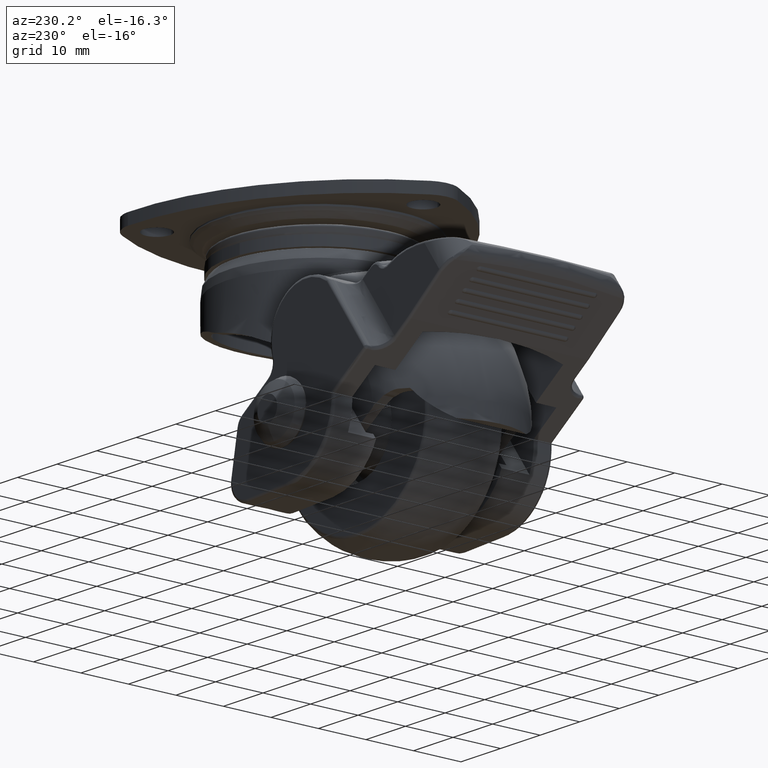
[diagram: clean part render]
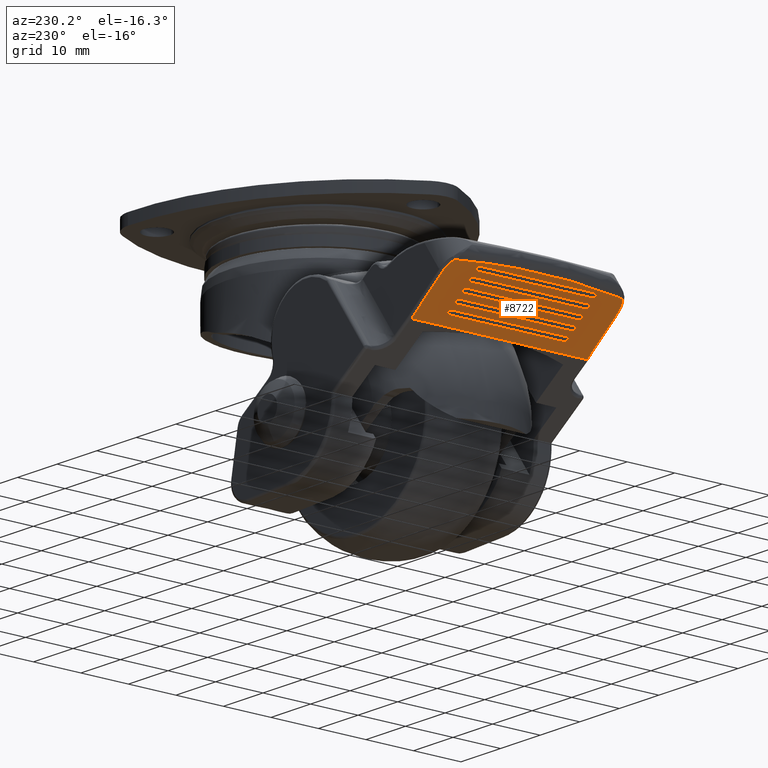
[diagram: same view with one face highlighted and labeled with its STEP entity id]
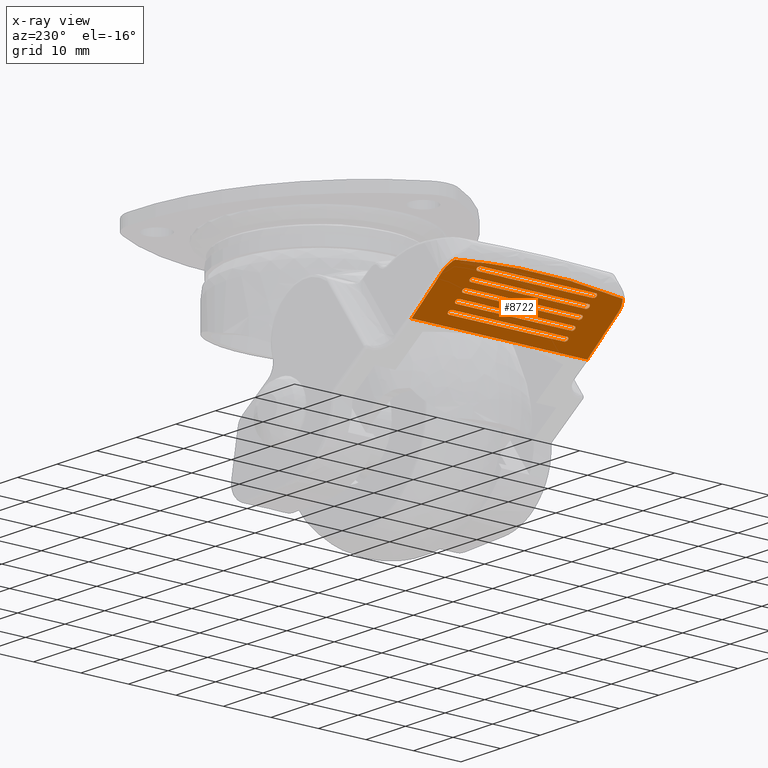
[diagram: x-ray of the same camera — body ghosted, the highlighted face saturated]
A machine part, auxiliary view. The second image highlights one B-rep face of the part: STEP entity #8722.
The next image is the same camera in x-ray: the body ghosted, the highlighted face saturated — about 0% of this face is hidden behind the body in this view.
In plain terms, the highlighted face is a freeform B-spline surface patch.
Its self-contained STEP definition (entity closure, byte-faithful):
#780=CARTESIAN_POINT('',(-48.315630152389403,12.103015000000021,-27.219015084264601));
#781=VERTEX_POINT('',#780);
#782=CARTESIAN_POINT('',(-47.530628739907200,12.103014999999999,-27.838574681366250));
#783=VERTEX_POINT('',#782);
#784=CARTESIAN_POINT('',(-48.315630152389403,12.103015000000021,-27.219015084264601));
#785=CARTESIAN_POINT('',(-48.315630152389389,12.391701681362195,-27.219015084264594));
#786=CARTESIAN_POINT('',(-48.119379799268842,12.536045022043270,-27.373904983540019));
#787=CARTESIAN_POINT('',(-47.923129446148302,12.680388362724351,-27.528794882815433));
#788=CARTESIAN_POINT('',(-47.726879093027740,12.536045022043250,-27.683684782090850));
#789=CARTESIAN_POINT('',(-47.530628739907208,12.391701681362159,-27.838574681366246));
#790=CARTESIAN_POINT('',(-47.530628739907200,12.103014999999999,-27.838574681366250));
#798=(BOUNDED_CURVE()B_SPLINE_CURVE(2,(#784,#785,#786,#787,#788,#789,#790),.UNSPECIFIED.,.F.,.U.)B_SPLINE_CURVE_WITH_KNOTS((3,2,2,3),(0.0,0.333333333333333,0.666666666666667,1.0),.UNSPECIFIED.)CURVE()GEOMETRIC_REPRESENTATION_ITEM()RATIONAL_B_SPLINE_CURVE((1.0,0.866025403784435,1.0,0.866025403784435,1.0,0.866025403784435,1.0))REPRESENTATION_ITEM(''));
#799=EDGE_CURVE('',#781,#783,#798,.T.);
#843=CARTESIAN_POINT('',(-50.129849152389397,12.103015000000021,-25.787145084264601));
#844=VERTEX_POINT('',#843);
#845=CARTESIAN_POINT('',(-49.344848127904598,12.103014999999999,-26.406704851228248));
#846=VERTEX_POINT('',#845);
#847=CARTESIAN_POINT('',(-50.129849152389433,12.103015000000021,-25.787145084264601));
#848=CARTESIAN_POINT('',(-50.129849152389447,12.391701681362209,-25.787145084264608));
#849=CARTESIAN_POINT('',(-49.933599118484160,12.536045022043290,-25.942035123289429));
#850=CARTESIAN_POINT('',(-49.737349084578874,12.680388362724376,-26.096925162314257));
#851=CARTESIAN_POINT('',(-49.541099050673623,12.536045022043281,-26.251815201339092));
#852=CARTESIAN_POINT('',(-49.344849016768372,12.391701681362184,-26.406705240363902));
#853=CARTESIAN_POINT('',(-49.344848127904598,12.103014999999999,-26.406704851228248));
#861=(BOUNDED_CURVE()B_SPLINE_CURVE(2,(#847,#848,#849,#850,#851,#852,#853),.UNSPECIFIED.,.F.,.U.)B_SPLINE_CURVE_WITH_KNOTS((3,2,2,3),(0.0,0.333333333333333,0.666666666666667,1.0),.UNSPECIFIED.)CURVE()GEOMETRIC_REPRESENTATION_ITEM()RATIONAL_B_SPLINE_CURVE((1.0,0.866025403784435,1.0,0.866025403784435,1.0,0.866025403784435,1.0))REPRESENTATION_ITEM(''));
#862=EDGE_CURVE('',#844,#846,#861,.T.);
#906=CARTESIAN_POINT('',(-51.944068152389399,12.103015000000021,-24.355275084264651));
#907=VERTEX_POINT('',#906);
#908=CARTESIAN_POINT('',(-51.159067515902301,12.103014999999999,-24.974835021090001));
#909=VERTEX_POINT('',#908);
#910=CARTESIAN_POINT('',(-51.944068152389427,12.103015000000021,-24.355275084264608));
#911=CARTESIAN_POINT('',(-51.944068152389427,12.391701681362195,-24.355275084264605));
#912=CARTESIAN_POINT('',(-51.747818118484162,12.536045022043281,-24.510165123289429));
#913=CARTESIAN_POINT('',(-51.551568084578889,12.680388362724363,-24.665055162314250));
#914=CARTESIAN_POINT('',(-51.355318050673631,12.536045022043270,-24.819945201339081));
#915=CARTESIAN_POINT('',(-51.159068016768373,12.391701681362182,-24.974835240363902));
#916=CARTESIAN_POINT('',(-51.159067515902301,12.103014999999999,-24.974835021090001));
#924=(BOUNDED_CURVE()B_SPLINE_CURVE(2,(#910,#911,#912,#913,#914,#915,#916),.UNSPECIFIED.,.F.,.U.)B_SPLINE_CURVE_WITH_KNOTS((3,2,2,3),(0.0,0.333333333333333,0.666666666666667,1.0),.UNSPECIFIED.)CURVE()GEOMETRIC_REPRESENTATION_ITEM()RATIONAL_B_SPLINE_CURVE((1.0,0.866025403784435,1.0,0.866025403784435,1.0,0.866025403784435,1.0))REPRESENTATION_ITEM(''));
#925=EDGE_CURVE('',#907,#909,#924,.T.);
#969=CARTESIAN_POINT('',(-53.758287152389400,12.103015000000021,-22.923405084264601));
#970=VERTEX_POINT('',#969);
#971=CARTESIAN_POINT('',(-52.973286903900302,12.103014999999999,-23.542965190951548));
#972=VERTEX_POINT('',#971);
#973=CARTESIAN_POINT('',(-53.758287152389428,12.103015000000021,-22.923405084264601));
#974=CARTESIAN_POINT('',(-53.758287152389428,12.391701681362209,-22.923405084264598));
#975=CARTESIAN_POINT('',(-53.562037118484163,12.536045022043290,-23.078295123289429));
#976=CARTESIAN_POINT('',(-53.365787084578898,12.680388362724376,-23.233185162314268));
#977=CARTESIAN_POINT('',(-53.169537050673618,12.536045022043281,-23.388075201339088));
#978=CARTESIAN_POINT('',(-52.973287016768367,12.391701681362184,-23.542965240363902));
#979=CARTESIAN_POINT('',(-52.973286903900302,12.103014999999999,-23.542965190951548));
#987=(BOUNDED_CURVE()B_SPLINE_CURVE(2,(#973,#974,#975,#976,#977,#978,#979),.UNSPECIFIED.,.F.,.U.)B_SPLINE_CURVE_WITH_KNOTS((3,2,2,3),(0.0,0.333333333333333,0.666666666666667,1.0),.UNSPECIFIED.)CURVE()GEOMETRIC_REPRESENTATION_ITEM()RATIONAL_B_SPLINE_CURVE((1.0,0.866025403784435,1.0,0.866025403784435,1.0,0.866025403784435,1.0))REPRESENTATION_ITEM(''));
#988=EDGE_CURVE('',#970,#972,#987,.T.);
#1032=CARTESIAN_POINT('',(-48.315630152389403,-12.103015999999959,-27.219015084264601));
#1033=VERTEX_POINT('',#1032);
#1034=CARTESIAN_POINT('',(-47.530630016768399,-12.103015999999959,-27.838575240363902));
#1035=VERTEX_POINT('',#1034);
#1051=CARTESIAN_POINT('',(-47.530630016768377,-12.103015999999959,-27.838575240363902));
#1052=CARTESIAN_POINT('',(-47.530630016768391,-12.603035999587687,-27.838575240363895));
#1053=CARTESIAN_POINT('',(-47.923130084578901,-12.603035999587689,-27.528795162314250));
#1054=CARTESIAN_POINT('',(-48.315630152389424,-12.603035999587687,-27.219015084264612));
#1055=CARTESIAN_POINT('',(-48.315630152389417,-12.103015999999959,-27.219015084264608));
#1063=(BOUNDED_CURVE()B_SPLINE_CURVE(2,(#1051,#1052,#1053,#1054,#1055),.UNSPECIFIED.,.F.,.U.)B_SPLINE_CURVE_WITH_KNOTS((3,2,3),(0.0,0.500000000000000,1.0),.UNSPECIFIED.)CURVE()GEOMETRIC_REPRESENTATION_ITEM()RATIONAL_B_SPLINE_CURVE((1.0,0.707106781186547,1.0,0.707106781186547,1.0))REPRESENTATION_ITEM(''));
#1064=EDGE_CURVE('',#1035,#1033,#1063,.T.);
#1093=CARTESIAN_POINT('',(-50.129849152389397,-12.103015999999959,-25.787145084264601));
#1094=VERTEX_POINT('',#1093);
#1095=CARTESIAN_POINT('',(-49.344849016768400,-12.103015999999959,-26.406705240363902));
#1096=VERTEX_POINT('',#1095);
#1112=CARTESIAN_POINT('',(-49.344849016768357,-12.103015999999959,-26.406705240363909));
#1113=CARTESIAN_POINT('',(-49.344849016768350,-12.603035999587696,-26.406705240363909));
#1114=CARTESIAN_POINT('',(-49.737349084578902,-12.603035999587700,-26.096925162314250));
#1115=CARTESIAN_POINT('',(-50.129849152389433,-12.603035999587696,-25.787145084264605));
#1116=CARTESIAN_POINT('',(-50.129849152389433,-12.103015999999959,-25.787145084264601));
#1124=(BOUNDED_CURVE()B_SPLINE_CURVE(2,(#1112,#1113,#1114,#1115,#1116),.UNSPECIFIED.,.F.,.U.)B_SPLINE_CURVE_WITH_KNOTS((3,2,3),(0.0,0.500000000000000,1.0),.UNSPECIFIED.)CURVE()GEOMETRIC_REPRESENTATION_ITEM()RATIONAL_B_SPLINE_CURVE((1.0,0.707106781186548,1.0,0.707106781186548,1.0))REPRESENTATION_ITEM(''));
#1125=EDGE_CURVE('',#1096,#1094,#1124,.T.);
#1154=CARTESIAN_POINT('',(-51.944068152389399,-12.103015999999959,-24.355275084264601));
#1155=VERTEX_POINT('',#1154);
#1156=CARTESIAN_POINT('',(-51.159068016768401,-12.103015999999959,-24.974835240363898));
#1157=VERTEX_POINT('',#1156);
#1173=CARTESIAN_POINT('',(-51.159068016768373,-12.103015999999959,-24.974835240363898));
#1174=CARTESIAN_POINT('',(-51.159068016768366,-12.603035999587687,-24.974835240363888));
#1175=CARTESIAN_POINT('',(-51.551568084578903,-12.603035999587689,-24.665055162314250));
#1176=CARTESIAN_POINT('',(-51.944068152389427,-12.603035999587687,-24.355275084264598));
#1177=CARTESIAN_POINT('',(-51.944068152389427,-12.103015999999959,-24.355275084264608));
#1185=(BOUNDED_CURVE()B_SPLINE_CURVE(2,(#1173,#1174,#1175,#1176,#1177),.UNSPECIFIED.,.F.,.U.)B_SPLINE_CURVE_WITH_KNOTS((3,2,3),(0.0,0.500000000000000,1.0),.UNSPECIFIED.)CURVE()GEOMETRIC_REPRESENTATION_ITEM()RATIONAL_B_SPLINE_CURVE((1.0,0.707106781186547,1.0,0.707106781186547,1.0))REPRESENTATION_ITEM(''));
#1186=EDGE_CURVE('',#1157,#1155,#1185,.T.);
#1215=CARTESIAN_POINT('',(-53.758287152389400,-12.103015999999959,-22.923405084264601));
#1216=VERTEX_POINT('',#1215);
#1217=CARTESIAN_POINT('',(-52.973287016768403,-12.103015999999959,-23.542965240363898));
#1218=VERTEX_POINT('',#1217);
#1234=CARTESIAN_POINT('',(-52.973287016768367,-12.103015999999959,-23.542965240363909));
#1235=CARTESIAN_POINT('',(-52.973287016768367,-12.603035999587696,-23.542965240363912));
#1236=CARTESIAN_POINT('',(-53.365787084578898,-12.603035999587700,-23.233185162314250));
#1237=CARTESIAN_POINT('',(-53.758287152389428,-12.603035999587696,-22.923405084264598));
#1238=CARTESIAN_POINT('',(-53.758287152389428,-12.103015999999959,-22.923405084264601));
#1246=(BOUNDED_CURVE()B_SPLINE_CURVE(2,(#1234,#1235,#1236,#1237,#1238),.UNSPECIFIED.,.F.,.U.)B_SPLINE_CURVE_WITH_KNOTS((3,2,3),(0.0,0.500000000000000,1.0),.UNSPECIFIED.)CURVE()GEOMETRIC_REPRESENTATION_ITEM()RATIONAL_B_SPLINE_CURVE((1.0,0.707106781186548,1.0,0.707106781186548,1.0))REPRESENTATION_ITEM(''));
#1247=EDGE_CURVE('',#1218,#1216,#1246,.T.);
#1267=CARTESIAN_POINT('',(-48.315630152389403,12.103015000000021,-27.219015084264601));
#1268=CARTESIAN_POINT('',(-48.315630152389403,-12.103015999999959,-27.219015084264601));
#1269=QUASI_UNIFORM_CURVE('',1,(#1267,#1268),.UNSPECIFIED.,.F.,.U.);
#1270=EDGE_CURVE('',#781,#1033,#1269,.T.);
#1273=CARTESIAN_POINT('',(-47.530628739907200,12.103014999999999,-27.838574681366250));
#1274=CARTESIAN_POINT('',(-47.530630016768399,-12.103015999999959,-27.838575240363902));
#1275=QUASI_UNIFORM_CURVE('',1,(#1273,#1274),.UNSPECIFIED.,.F.,.U.);
#1276=EDGE_CURVE('',#783,#1035,#1275,.T.);
#1296=CARTESIAN_POINT('',(-50.129849152389397,12.103015000000021,-25.787145084264601));
#1297=CARTESIAN_POINT('',(-50.129849152389397,-12.103015999999959,-25.787145084264601));
#1298=QUASI_UNIFORM_CURVE('',1,(#1296,#1297),.UNSPECIFIED.,.F.,.U.);
#1299=EDGE_CURVE('',#844,#1094,#1298,.T.);
#1302=CARTESIAN_POINT('',(-49.344848127904598,12.103014999999999,-26.406704851228248));
#1303=CARTESIAN_POINT('',(-49.344849016768400,-12.103015999999959,-26.406705240363902));
#1304=QUASI_UNIFORM_CURVE('',1,(#1302,#1303),.UNSPECIFIED.,.F.,.U.);
#1305=EDGE_CURVE('',#846,#1096,#1304,.T.);
#1325=CARTESIAN_POINT('',(-51.944068152389399,12.103015000000021,-24.355275084264651));
#1326=CARTESIAN_POINT('',(-51.944068152389399,-12.103015999999959,-24.355275084264601));
#1327=QUASI_UNIFORM_CURVE('',1,(#1325,#1326),.UNSPECIFIED.,.F.,.U.);
#1328=EDGE_CURVE('',#907,#1155,#1327,.T.);
#1331=CARTESIAN_POINT('',(-51.159067515902301,12.103014999999999,-24.974835021090001));
#1332=CARTESIAN_POINT('',(-51.159068016768401,-12.103015999999959,-24.974835240363898));
#1333=QUASI_UNIFORM_CURVE('',1,(#1331,#1332),.UNSPECIFIED.,.F.,.U.);
#1334=EDGE_CURVE('',#909,#1157,#1333,.T.);
#1354=CARTESIAN_POINT('',(-53.758287152389400,12.103015000000021,-22.923405084264601));
#1355=CARTESIAN_POINT('',(-53.758287152389400,-12.103015999999959,-22.923405084264601));
#1356=QUASI_UNIFORM_CURVE('',1,(#1354,#1355),.UNSPECIFIED.,.F.,.U.);
#1357=EDGE_CURVE('',#970,#1216,#1356,.T.);
#1360=CARTESIAN_POINT('',(-52.973286903900302,12.103014999999999,-23.542965190951548));
#1361=CARTESIAN_POINT('',(-52.973287016768403,-12.103015999999959,-23.542965240363898));
#1362=QUASI_UNIFORM_CURVE('',1,(#1360,#1361),.UNSPECIFIED.,.F.,.U.);
#1363=EDGE_CURVE('',#972,#1218,#1362,.T.);
#1392=CARTESIAN_POINT('',(-55.572506152389401,12.103015000000021,-21.491535084264601));
#1393=VERTEX_POINT('',#1392);
#1394=CARTESIAN_POINT('',(-54.787506291898602,12.103014999999999,-22.111095360812900));
#1395=VERTEX_POINT('',#1394);
#1396=CARTESIAN_POINT('',(-55.572506152389423,12.103015000000021,-21.491535084264601));
#1397=CARTESIAN_POINT('',(-55.572506152389430,12.391701681362196,-21.491535084264605));
#1398=CARTESIAN_POINT('',(-55.376256118484150,12.536045022043281,-21.646425123289429));
#1399=CARTESIAN_POINT('',(-55.180006084578899,12.680388362724365,-21.801315162314253));
#1400=CARTESIAN_POINT('',(-54.983756050673627,12.536045022043270,-21.956205201339081));
#1401=CARTESIAN_POINT('',(-54.787506016768376,12.391701681362184,-22.111095240363902));
#1402=CARTESIAN_POINT('',(-54.787506291898602,12.103014999999999,-22.111095360812900));
#1410=(BOUNDED_CURVE()B_SPLINE_CURVE(2,(#1396,#1397,#1398,#1399,#1400,#1401,#1402),.UNSPECIFIED.,.F.,.U.)B_SPLINE_CURVE_WITH_KNOTS((3,2,2,3),(0.0,0.333333333333333,0.666666666666667,1.0),.UNSPECIFIED.)CURVE()GEOMETRIC_REPRESENTATION_ITEM()RATIONAL_B_SPLINE_CURVE((1.0,0.866025403784435,1.0,0.866025403784435,1.0,0.866025403784435,1.0))REPRESENTATION_ITEM(''));
#1411=EDGE_CURVE('',#1393,#1395,#1410,.T.);
#1455=CARTESIAN_POINT('',(-55.572506152389401,-12.103015999999959,-21.491535084264601));
#1456=VERTEX_POINT('',#1455);
#1457=CARTESIAN_POINT('',(-54.787506016768397,-12.103015999999959,-22.111095240363898));
#1458=VERTEX_POINT('',#1457);
#1474=CARTESIAN_POINT('',(-54.787506016768369,-12.103015999999959,-22.111095240363898));
#1475=CARTESIAN_POINT('',(-54.787506016768376,-12.603035999587689,-22.111095240363898));
#1476=CARTESIAN_POINT('',(-55.180006084578899,-12.603035999587689,-21.801315162314250));
#1477=CARTESIAN_POINT('',(-55.572506152389415,-12.603035999587689,-21.491535084264601));
#1478=CARTESIAN_POINT('',(-55.572506152389423,-12.103015999999959,-21.491535084264601));
#1486=(BOUNDED_CURVE()B_SPLINE_CURVE(2,(#1474,#1475,#1476,#1477,#1478),.UNSPECIFIED.,.F.,.U.)B_SPLINE_CURVE_WITH_KNOTS((3,2,3),(0.0,0.500000000000000,1.0),.UNSPECIFIED.)CURVE()GEOMETRIC_REPRESENTATION_ITEM()RATIONAL_B_SPLINE_CURVE((1.0,0.707106781186548,1.0,0.707106781186548,1.0))REPRESENTATION_ITEM(''));
#1487=EDGE_CURVE('',#1458,#1456,#1486,.T.);
#1507=CARTESIAN_POINT('',(-55.572506152389401,12.103015000000021,-21.491535084264601));
#1508=CARTESIAN_POINT('',(-55.572506152389401,-12.103015999999959,-21.491535084264601));
#1509=QUASI_UNIFORM_CURVE('',1,(#1507,#1508),.UNSPECIFIED.,.F.,.U.);
#1510=EDGE_CURVE('',#1393,#1456,#1509,.T.);
#1513=CARTESIAN_POINT('',(-54.787506291898602,12.103014999999999,-22.111095360812900));
#1514=CARTESIAN_POINT('',(-54.787506016768397,-12.103015999999959,-22.111095240363898));
#1515=QUASI_UNIFORM_CURVE('',1,(#1513,#1514),.UNSPECIFIED.,.F.,.U.);
#1516=EDGE_CURVE('',#1395,#1458,#1515,.T.);
#3763=CARTESIAN_POINT('',(-45.716410000000003,-18.500000000000000,-29.270444000000001));
#3764=VERTEX_POINT('',#3763);
#3808=CARTESIAN_POINT('',(-53.584049952529213,-18.500000000000000,-23.060921404802802));
#3809=VERTEX_POINT('',#3808);
#3825=CARTESIAN_POINT('',(-53.584049952529213,-18.500000000000000,-23.060921404802802));
#3826=CARTESIAN_POINT('',(-45.716410000000003,-18.500000000000000,-29.270444000000001));
#3827=QUASI_UNIFORM_CURVE('',1,(#3825,#3826),.UNSPECIFIED.,.F.,.U.);
#3828=EDGE_CURVE('',#3809,#3764,#3827,.T.);
#3897=CARTESIAN_POINT('',(-55.674370440606701,-17.630081090211650,-21.411139210871799));
#3898=VERTEX_POINT('',#3897);
#3914=CARTESIAN_POINT('',(-55.674370440606701,-17.630081090211650,-21.411139210871799));
#3915=CARTESIAN_POINT('',(-54.741042405933086,-18.499999968980163,-22.147766910544028));
#3916=CARTESIAN_POINT('',(-53.584049952529213,-18.500000000000000,-23.060921404802802));
#3924=(BOUNDED_CURVE()B_SPLINE_CURVE(2,(#3914,#3915,#3916),.UNSPECIFIED.,.F.,.U.)CURVE()GEOMETRIC_REPRESENTATION_ITEM()QUASI_UNIFORM_CURVE()RATIONAL_B_SPLINE_CURVE((1.0,0.950443238485959,1.0))REPRESENTATION_ITEM(''));
#3925=EDGE_CURVE('',#3898,#3809,#3924,.T.);
#6528=CARTESIAN_POINT('',(-45.716410000000003,18.500000000000000,-29.270444000000001));
#6529=VERTEX_POINT('',#6528);
#6573=CARTESIAN_POINT('',(-53.584049952529213,18.500000000000000,-23.060921404802802));
#6574=VERTEX_POINT('',#6573);
#6596=CARTESIAN_POINT('',(-53.584049952529213,18.500000000000000,-23.060921404802802));
#6597=CARTESIAN_POINT('',(-45.716410000000003,18.500000000000000,-29.270444000000001));
#6598=QUASI_UNIFORM_CURVE('',1,(#6596,#6597),.UNSPECIFIED.,.F.,.U.);
#6599=EDGE_CURVE('',#6574,#6529,#6598,.T.);
#6662=CARTESIAN_POINT('',(-55.674370440606701,17.630081090211650,-21.411139210871799));
#6663=VERTEX_POINT('',#6662);
#6693=CARTESIAN_POINT('',(-55.674370440606701,17.630081090211650,-21.411139210871799));
#6694=CARTESIAN_POINT('',(-54.741042405933086,18.499999968980163,-22.147766910544028));
#6695=CARTESIAN_POINT('',(-53.584049952529213,18.500000000000000,-23.060921404802802));
#6703=(BOUNDED_CURVE()B_SPLINE_CURVE(2,(#6693,#6694,#6695),.UNSPECIFIED.,.F.,.U.)CURVE()GEOMETRIC_REPRESENTATION_ITEM()QUASI_UNIFORM_CURVE()RATIONAL_B_SPLINE_CURVE((1.0,0.950443238485959,1.0))REPRESENTATION_ITEM(''));
#6704=EDGE_CURVE('',#6663,#6574,#6703,.T.);
#6873=CARTESIAN_POINT('',(-55.674370440606630,-17.630081090211689,-21.411139210871870));
#6874=CARTESIAN_POINT('',(-57.527613798008744,-3.122502E-013,-19.948469773579173));
#6875=CARTESIAN_POINT('',(-55.674370440606701,17.630081090211650,-21.411139210871799));
#6883=(BOUNDED_CURVE()B_SPLINE_CURVE(2,(#6873,#6874,#6875),.UNSPECIFIED.,.F.,.U.)CURVE()GEOMETRIC_REPRESENTATION_ITEM()QUASI_UNIFORM_CURVE()RATIONAL_B_SPLINE_CURVE((1.0,0.991175386742230,1.0))REPRESENTATION_ITEM(''));
#6884=EDGE_CURVE('',#3898,#6663,#6883,.T.);
#8059=CARTESIAN_POINT('',(-45.716409999997197,0.0,-29.270444000001550));
#8060=VERTEX_POINT('',#8059);
#8670=CARTESIAN_POINT('',(-45.172930821397408,-20.348149928286819,-29.699384096383959));
#8671=CARTESIAN_POINT('',(-57.140364639095878,-20.348149928286819,-20.254105569926139));
#8672=CARTESIAN_POINT('',(-45.172930821397408,20.348150920704160,-29.699384096383959));
#8673=CARTESIAN_POINT('',(-57.140364639095878,20.348150920704160,-20.254105569926139));
#8674=B_SPLINE_SURFACE_WITH_KNOTS('',1,1,((#8670,#8672),(#8671,#8673)),.UNSPECIFIED.,.F.,.F.,.U.,(2,2),(2,2),(0.0,15.245745590929889),(0.0,40.696300848990980),.UNSPECIFIED.);
#8675=ORIENTED_EDGE('',*,*,#6704,.T.);
#8676=ORIENTED_EDGE('',*,*,#6599,.T.);
#8677=CARTESIAN_POINT('',(-45.716410000000003,18.500000000000000,-29.270444000000001));
#8678=CARTESIAN_POINT('',(-45.716409999997197,0.0,-29.270444000001550));
#8679=QUASI_UNIFORM_CURVE('',1,(#8677,#8678),.UNSPECIFIED.,.F.,.U.);
#8680=EDGE_CURVE('',#6529,#8060,#8679,.T.);
#8681=ORIENTED_EDGE('',*,*,#8680,.T.);
#8682=CARTESIAN_POINT('',(-45.716410000000003,-18.500000000000000,-29.270444000000001));
#8683=CARTESIAN_POINT('',(-45.716409999997197,0.0,-29.270444000001550));
#8684=QUASI_UNIFORM_CURVE('',1,(#8682,#8683),.UNSPECIFIED.,.F.,.U.);
#8685=EDGE_CURVE('',#3764,#8060,#8684,.T.);
#8686=ORIENTED_EDGE('',*,*,#8685,.F.);
#8687=ORIENTED_EDGE('',*,*,#3828,.F.);
#8688=ORIENTED_EDGE('',*,*,#3925,.F.);
#8689=ORIENTED_EDGE('',*,*,#6884,.T.);
#8690=EDGE_LOOP('',(#8675,#8676,#8681,#8686,#8687,#8688,#8689));
#8691=FACE_OUTER_BOUND('',#8690,.T.);
#8692=ORIENTED_EDGE('',*,*,#1363,.F.);
#8693=ORIENTED_EDGE('',*,*,#988,.F.);
#8694=ORIENTED_EDGE('',*,*,#1357,.T.);
#8695=ORIENTED_EDGE('',*,*,#1247,.F.);
#8696=EDGE_LOOP('',(#8692,#8693,#8694,#8695));
#8697=FACE_BOUND('',#8696,.T.);
#8698=ORIENTED_EDGE('',*,*,#1305,.F.);
#8699=ORIENTED_EDGE('',*,*,#862,.F.);
#8700=ORIENTED_EDGE('',*,*,#1299,.T.);
#8701=ORIENTED_EDGE('',*,*,#1125,.F.);
#8702=EDGE_LOOP('',(#8698,#8699,#8700,#8701));
#8703=FACE_BOUND('',#8702,.T.);
#8704=ORIENTED_EDGE('',*,*,#1516,.F.);
#8705=ORIENTED_EDGE('',*,*,#1411,.F.);
#8706=ORIENTED_EDGE('',*,*,#1510,.T.);
#8707=ORIENTED_EDGE('',*,*,#1487,.F.);
#8708=EDGE_LOOP('',(#8704,#8705,#8706,#8707));
#8709=FACE_BOUND('',#8708,.T.);
#8710=ORIENTED_EDGE('',*,*,#1334,.F.);
#8711=ORIENTED_EDGE('',*,*,#925,.F.);
#8712=ORIENTED_EDGE('',*,*,#1328,.T.);
#8713=ORIENTED_EDGE('',*,*,#1186,.F.);
#8714=EDGE_LOOP('',(#8710,#8711,#8712,#8713));
#8715=FACE_BOUND('',#8714,.T.);
#8716=ORIENTED_EDGE('',*,*,#1276,.F.);
#8717=ORIENTED_EDGE('',*,*,#799,.F.);
#8718=ORIENTED_EDGE('',*,*,#1270,.T.);
#8719=ORIENTED_EDGE('',*,*,#1064,.F.);
#8720=EDGE_LOOP('',(#8716,#8717,#8718,#8719));
#8721=FACE_BOUND('',#8720,.T.);
#8722=ADVANCED_FACE('',(#8691,#8697,#8703,#8709,#8715,#8721),#8674,.T.);